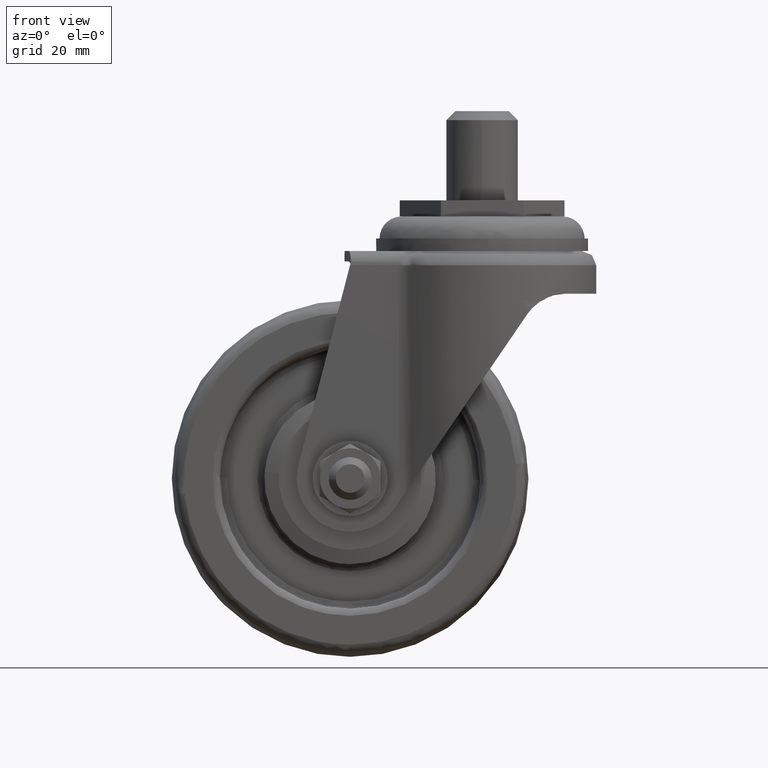
[diagram: clean part render]
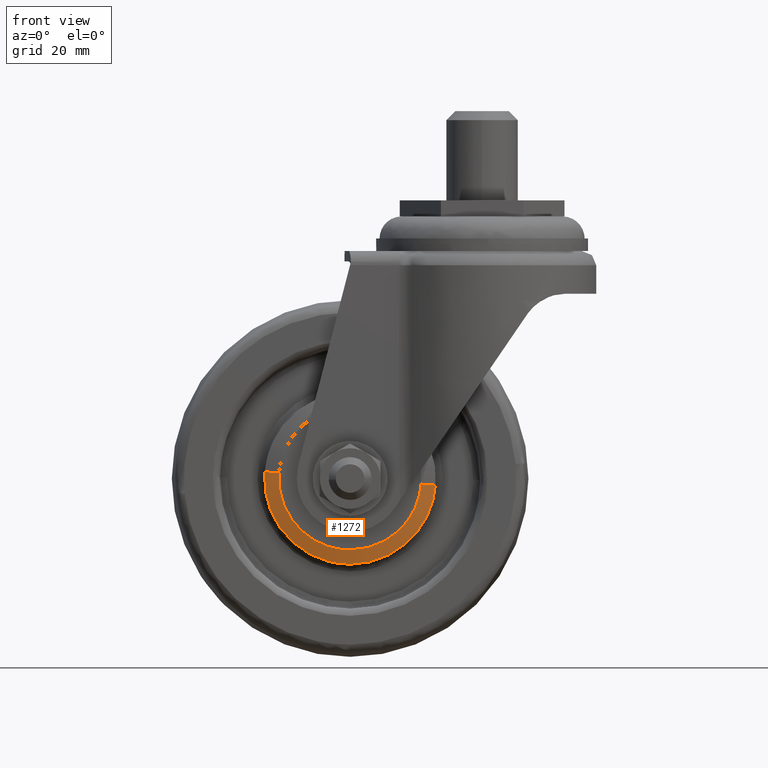
[diagram: same view with one face highlighted and labeled with its STEP entity id]
A machine part, front view. The second image highlights one B-rep face of the part: STEP entity #1272.
In plain terms, the highlighted face is a freeform B-spline surface patch.
Its self-contained STEP definition (entity closure, byte-faithful):
#1118=CARTESIAN_POINT('',(-37.0,-20.0,-93.500000000000000));
#1119=VERTEX_POINT('',#1118);
#1120=CARTESIAN_POINT('',(-17.061653325325739,-19.999999999993950,-75.069181914716410));
#1121=VERTEX_POINT('',#1120);
#1122=CARTESIAN_POINT('',(-37.0,-20.0,-93.500000000000000));
#1123=CARTESIAN_POINT('',(-18.512190166970399,-19.999999999996977,-93.500000000000938));
#1124=CARTESIAN_POINT('',(-17.061653325325747,-19.999999999993957,-75.069181914716410));
#1132=(BOUNDED_CURVE()B_SPLINE_CURVE(2,(#1122,#1123,#1124),.UNSPECIFIED.,.F.,.U.)B_SPLINE_CURVE_WITH_KNOTS((3,3),(0.0,0.236331300631412),.UNSPECIFIED.)CURVE()GEOMETRIC_REPRESENTATION_ITEM()RATIONAL_B_SPLINE_CURVE((1.0,0.723120658606784,0.969723356168988))REPRESENTATION_ITEM(''));
#1133=EDGE_CURVE('',#1119,#1121,#1132,.T.);
#1152=CARTESIAN_POINT('',(-56.938346674674250,-19.999999999993950,-71.930818085283590));
#1153=VERTEX_POINT('',#1152);
#1167=CARTESIAN_POINT('',(-56.938346674674257,-19.999999999993957,-71.930818085283590));
#1168=CARTESIAN_POINT('',(-57.000000000023654,-19.999999999994071,-72.714197859765562));
#1169=CARTESIAN_POINT('',(-57.000000000023192,-19.999999999994181,-73.499999999998167));
#1170=CARTESIAN_POINT('',(-57.000000000011127,-19.999999999997211,-93.499999999999119));
#1171=CARTESIAN_POINT('',(-37.0,-20.0,-93.500000000000000));
#1179=(BOUNDED_CURVE()B_SPLINE_CURVE(2,(#1167,#1168,#1169,#1170,#1171),.UNSPECIFIED.,.F.,.U.)B_SPLINE_CURVE_WITH_KNOTS((3,2,3),(0.736331300631412,0.750000000000000,1.0),.UNSPECIFIED.)CURVE()GEOMETRIC_REPRESENTATION_ITEM()RATIONAL_B_SPLINE_CURVE((0.969723356168988,0.983986122579763,1.0,0.707106781186548,1.0))REPRESENTATION_ITEM(''));
#1180=EDGE_CURVE('',#1153,#1119,#1179,.T.);
#1191=CARTESIAN_POINT('',(-17.161345058710801,-20.024999999999999,-75.061336004984128));
#1192=CARTESIAN_POINT('',(-18.722681063694932,-20.025000000000009,-94.899990946273320));
#1193=CARTESIAN_POINT('',(-38.561336004984121,-20.024999999999999,-93.338654941289192));
#1194=CARTESIAN_POINT('',(-58.399990946273313,-20.025000000000009,-91.777318936305079));
#1195=CARTESIAN_POINT('',(-56.838654941289192,-20.024999999999999,-71.938663995015872));
#1196=CARTESIAN_POINT('',(-12.971799963697279,-18.974374999999998,-75.391060354780393));
#1197=CARTESIAN_POINT('',(-14.862860318477669,-18.974375000000002,-99.419260391083114));
#1198=CARTESIAN_POINT('',(-38.891060354780400,-18.974374999999998,-97.528200036302721));
#1199=CARTESIAN_POINT('',(-62.919260391083121,-18.974375000000002,-95.637139681522328));
#1200=CARTESIAN_POINT('',(-61.028200036302721,-18.974374999999998,-71.608939645219607));
#1208=(BOUNDED_SURFACE()B_SPLINE_SURFACE(2,1,((#1191,#1196),(#1192,#1197),(#1193,#1198),(#1194,#1199),(#1195,#1200)),.UNSPECIFIED.,.F.,.F.,.U.)B_SPLINE_SURFACE_WITH_KNOTS((3,2,3),(2,2),(0.0,39.934329548390117,79.868659096780249),(0.0,4.331837847914616),.UNSPECIFIED.)GEOMETRIC_REPRESENTATION_ITEM()RATIONAL_B_SPLINE_SURFACE(((1.0,1.0),(0.707106781186548,0.707106781186548),(1.0,1.0),(0.707106781186548,0.707106781186548),(1.0,1.0)))REPRESENTATION_ITEM('')SURFACE());
#1209=CARTESIAN_POINT('',(-37.0,-19.0,-97.500000000000000));
#1210=VERTEX_POINT('',#1209);
#1211=CARTESIAN_POINT('',(-13.073983990390159,-18.999999999981679,-75.383018298039289));
#1212=VERTEX_POINT('',#1211);
#1213=CARTESIAN_POINT('',(-37.0,-19.0,-97.500000000000000));
#1214=CARTESIAN_POINT('',(-14.814628200692983,-18.999999999990830,-97.500000000005286));
#1215=CARTESIAN_POINT('',(-13.073983990390159,-18.999999999981682,-75.383018298039289));
#1223=(BOUNDED_CURVE()B_SPLINE_CURVE(2,(#1213,#1214,#1215),.UNSPECIFIED.,.F.,.U.)B_SPLINE_CURVE_WITH_KNOTS((3,3),(0.0,0.236331300628755),.UNSPECIFIED.)CURVE()GEOMETRIC_REPRESENTATION_ITEM()RATIONAL_B_SPLINE_CURVE((1.0,0.723120658609897,0.969723356163442))REPRESENTATION_ITEM(''));
#1224=EDGE_CURVE('',#1210,#1212,#1223,.T.);
#1225=ORIENTED_EDGE('',*,*,#1224,.T.);
#1226=CARTESIAN_POINT('',(-17.061653325325739,-19.999999999993950,-75.069181914716410));
#1227=CARTESIAN_POINT('',(-13.073983990390159,-18.999999999981679,-75.383018298039289));
#1228=QUASI_UNIFORM_CURVE('',1,(#1226,#1227),.UNSPECIFIED.,.F.,.U.);
#1229=EDGE_CURVE('',#1121,#1212,#1228,.T.);
#1230=ORIENTED_EDGE('',*,*,#1229,.F.);
#1231=ORIENTED_EDGE('',*,*,#1133,.F.);
#1232=ORIENTED_EDGE('',*,*,#1180,.F.);
#1233=CARTESIAN_POINT('',(-60.926016009609853,-18.999999999981679,-71.616981701960682));
#1234=VERTEX_POINT('',#1233);
#1235=CARTESIAN_POINT('',(-56.938346674674250,-19.999999999993950,-71.930818085283590));
#1236=CARTESIAN_POINT('',(-60.926016009609853,-18.999999999981679,-71.616981701960682));
#1237=QUASI_UNIFORM_CURVE('',1,(#1235,#1236),.UNSPECIFIED.,.F.,.U.);
#1238=EDGE_CURVE('',#1153,#1234,#1237,.T.);
#1239=ORIENTED_EDGE('',*,*,#1238,.T.);
#1240=CARTESIAN_POINT('',(-60.736386489988661,-19.0,-77.047387263375725));
#1241=VERTEX_POINT('',#1240);
#1242=CARTESIAN_POINT('',(-60.926016009609839,-18.999999999981679,-71.616981701960682));
#1243=CARTESIAN_POINT('',(-61.000000000043222,-18.999999999984837,-72.557037431524691));
#1244=CARTESIAN_POINT('',(-61.000000000027562,-18.999999999988010,-73.499999999991161));
#1245=CARTESIAN_POINT('',(-60.999999999997904,-18.999999999994028,-75.283488457774368));
#1246=CARTESIAN_POINT('',(-60.736386489988661,-18.999999999999996,-77.047387263375725));
#1254=(BOUNDED_CURVE()B_SPLINE_CURVE(2,(#1242,#1243,#1244,#1245,#1246),.UNSPECIFIED.,.F.,.U.)B_SPLINE_CURVE_WITH_KNOTS((3,2,3),(0.736331300628755,0.750000000000000,0.775488697530582),.UNSPECIFIED.)CURVE()GEOMETRIC_REPRESENTATION_ITEM()RATIONAL_B_SPLINE_CURVE((0.969723356163442,0.983986122576650,1.0,0.970138133347621,0.946365387389650))REPRESENTATION_ITEM(''));
#1255=EDGE_CURVE('',#1234,#1241,#1254,.T.);
#1256=ORIENTED_EDGE('',*,*,#1255,.T.);
#1257=CARTESIAN_POINT('',(-60.736386489988661,-18.999999999999996,-77.047387263375725));
#1258=CARTESIAN_POINT('',(-57.679757042415886,-19.0,-97.499999999997641));
#1259=CARTESIAN_POINT('',(-37.0,-19.0,-97.500000000000000));
#1267=(BOUNDED_CURVE()B_SPLINE_CURVE(2,(#1257,#1258,#1259),.UNSPECIFIED.,.F.,.U.)B_SPLINE_CURVE_WITH_KNOTS((3,3),(0.775488697530582,1.0),.UNSPECIFIED.)CURVE()GEOMETRIC_REPRESENTATION_ITEM()RATIONAL_B_SPLINE_CURVE((0.946365387389650,0.736968647838927,1.0))REPRESENTATION_ITEM(''));
#1268=EDGE_CURVE('',#1241,#1210,#1267,.T.);
#1269=ORIENTED_EDGE('',*,*,#1268,.T.);
#1270=EDGE_LOOP('',(#1225,#1230,#1231,#1232,#1239,#1256,#1269));
#1271=FACE_OUTER_BOUND('',#1270,.T.);
#1272=ADVANCED_FACE('',(#1271),#1208,.T.);